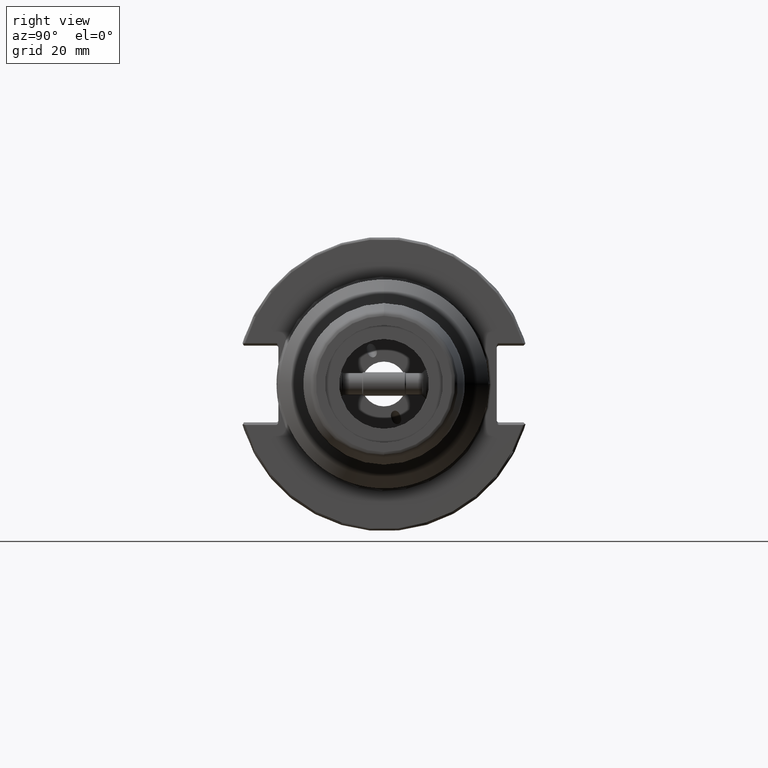
[diagram: clean part render]
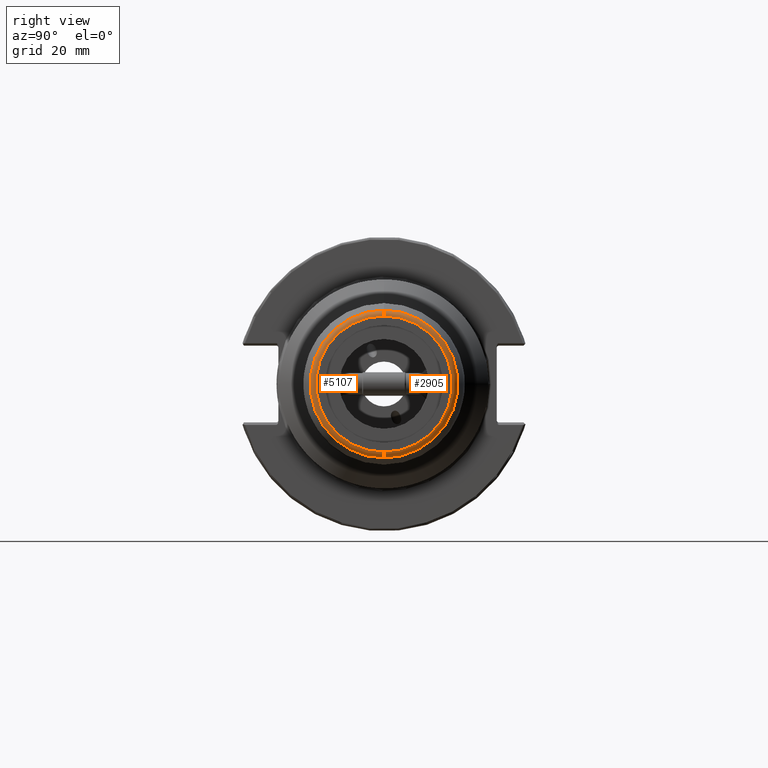
[diagram: same view with one multi-face feature highlighted, each face labeled with its STEP entity id]
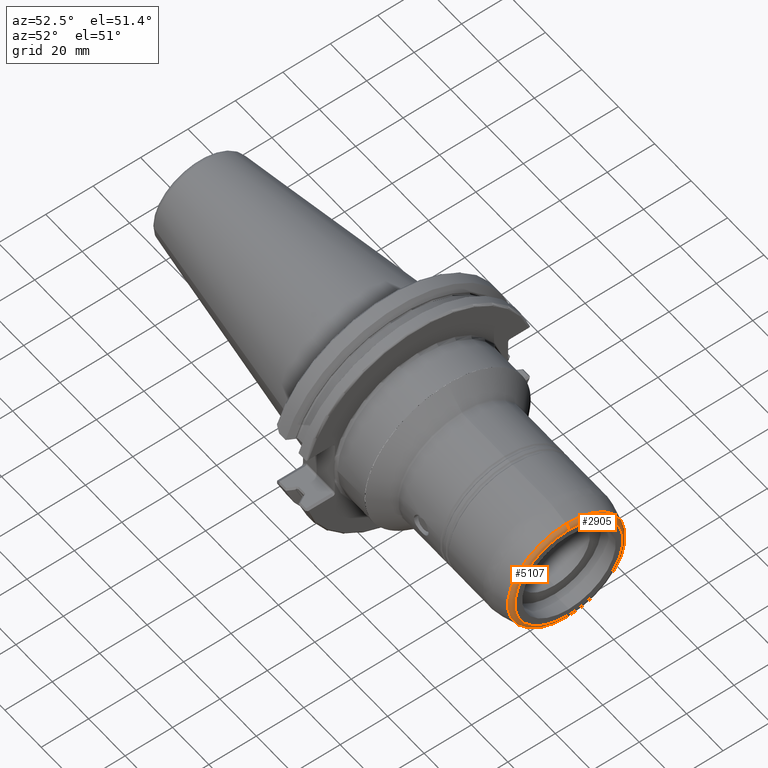
[diagram: same view with one multi-face feature highlighted, each face labeled with its STEP entity id]
A machine part, right view. The highlighted faces form ONE feature: a constant-radius fillet chain: 2 tangent blend faces with common blend radius 2 mm. The faces share edges in the B-rep.
A second angle (auxiliary view) of the same feature is appended — it is thin or edge-on in the first view.
Their STEP definitions:
[1] entity #5107 (Torus):
#357 = DIRECTION ( 'NONE',  ( -1.000000000000000000, -0.0000000000000000000, -0.0000000000000000000 ) ) ;
#432 = CARTESIAN_POINT ( 'NONE',  ( 99.41606872659400600, 0.0000000000000000000, 22.78585410437001000 ) ) ;
#460 = DIRECTION ( 'NONE',  ( -1.000000000000000000, -0.0000000000000000000, -0.0000000000000000000 ) ) ;
#894 = CARTESIAN_POINT ( 'NONE',  ( 101.4160687253223200, 2.908754126550275600E-015, -22.78585410437001000 ) ) ;
#989 = DIRECTION ( 'NONE',  ( 0.0000000000000000000, 0.0000000000000000000, -1.000000000000000000 ) ) ;
#1274 = AXIS2_PLACEMENT_3D ( 'NONE', #6542, #3836, #3084 ) ;
#1393 = ORIENTED_EDGE ( 'NONE', *, *, #6760, .T. ) ;
#1725 = EDGE_CURVE ( 'NONE', #2615, #5076, #6459, .T. ) ;
#2149 = CARTESIAN_POINT ( 'NONE',  ( 99.41606872659400600, 0.0000000000000000000, 0.0000000000000000000 ) ) ;
#2348 = EDGE_CURVE ( 'NONE', #3753, #5076, #6453, .T. ) ;
#2432 = AXIS2_PLACEMENT_3D ( 'NONE', #2149, #460, #6056 ) ;
#2487 = ORIENTED_EDGE ( 'NONE', *, *, #2348, .F. ) ;
#2551 = CARTESIAN_POINT ( 'NONE',  ( 99.41606872659400600, 2.790462329475531300E-015, -22.78585410437001000 ) ) ;
#2615 = VERTEX_POINT ( 'NONE', #7243 ) ;
#2661 = FACE_OUTER_BOUND ( 'NONE', #3598, .T. ) ;
#2850 = AXIS2_PLACEMENT_3D ( 'NONE', #3690, #357, #4245 ) ;
#2927 = ORIENTED_EDGE ( 'NONE', *, *, #5476, .F. ) ;
#3084 = DIRECTION ( 'NONE',  ( 0.0000000000000000000, 0.0000000000000000000, 1.000000000000000000 ) ) ;
#3121 = DIRECTION ( 'NONE',  ( 0.0000000000000000000, -1.224646799147353200E-016, 1.000000000000000000 ) ) ;
#3238 = CARTESIAN_POINT ( 'NONE',  ( 99.93370681573291800, 0.0000000000000000000, 24.71770575591725800 ) ) ;
#3530 = CIRCLE ( 'NONE', #4920, 1.999999998728314100 ) ;
#3598 = EDGE_LOOP ( 'NONE', ( #2927, #1393, #4277, #2487 ) ) ;
#3676 = VERTEX_POINT ( 'NONE', #894 ) ;
#3690 = CARTESIAN_POINT ( 'NONE',  ( 101.4160687253223200, 0.0000000000000000000, 0.0000000000000000000 ) ) ;
#3753 = VERTEX_POINT ( 'NONE', #7090 ) ;
#3795 = TOROIDAL_SURFACE ( 'NONE', #2432, 22.78585410437001000, 1.999999998728315000 ) ;
#3836 = DIRECTION ( 'NONE',  ( -1.000000000000000000, -0.0000000000000000000, -0.0000000000000000000 ) ) ;
#4245 = DIRECTION ( 'NONE',  ( 0.0000000000000000000, 0.0000000000000000000, 1.000000000000000000 ) ) ;
#4277 = ORIENTED_EDGE ( 'NONE', *, *, #1725, .T. ) ;
#4324 = DIRECTION ( 'NONE',  ( 0.0000000000000000000, -1.000000000000000000, 0.0000000000000000000 ) ) ;
#4920 = AXIS2_PLACEMENT_3D ( 'NONE', #2551, #6456, #3121 ) ;
#5076 = VERTEX_POINT ( 'NONE', #3238 ) ;
#5107 = ADVANCED_FACE ( 'NONE', ( #2661 ), #3795, .T. ) ;
#5476 = EDGE_CURVE ( 'NONE', #3676, #3753, #3530, .T. ) ;
#5817 = AXIS2_PLACEMENT_3D ( 'NONE', #432, #4324, #989 ) ;
#6056 = DIRECTION ( 'NONE',  ( 0.0000000000000000000, 0.0000000000000000000, 1.000000000000000000 ) ) ;
#6453 = CIRCLE ( 'NONE', #1274, 24.71770575591725800 ) ;
#6456 = DIRECTION ( 'NONE',  ( -0.0000000000000000000, 1.000000000000000000, 1.224646799147353200E-016 ) ) ;
#6459 = CIRCLE ( 'NONE', #5817, 1.999999998728314100 ) ;
#6519 = CIRCLE ( 'NONE', #2850, 22.78585410437001000 ) ;
#6542 = CARTESIAN_POINT ( 'NONE',  ( 99.93370681573291800, 0.0000000000000000000, 0.0000000000000000000 ) ) ;
#6760 = EDGE_CURVE ( 'NONE', #3676, #2615, #6519, .T. ) ;
#7090 = CARTESIAN_POINT ( 'NONE',  ( 99.93370681573291800, 3.135499519931746400E-015, -24.71770575591725800 ) ) ;
#7243 = CARTESIAN_POINT ( 'NONE',  ( 101.4160687253223200, 0.0000000000000000000, 22.78585410437001000 ) ) ;
[2] entity #2905 (Torus):
#206 = DIRECTION ( 'NONE',  ( 0.0000000000000000000, 0.0000000000000000000, 1.000000000000000000 ) ) ;
#223 = FACE_OUTER_BOUND ( 'NONE', #2214, .T. ) ;
#432 = CARTESIAN_POINT ( 'NONE',  ( 99.41606872659400600, 0.0000000000000000000, 22.78585410437001000 ) ) ;
#727 = DIRECTION ( 'NONE',  ( -1.000000000000000000, -0.0000000000000000000, -0.0000000000000000000 ) ) ;
#796 = DIRECTION ( 'NONE',  ( -1.000000000000000000, -0.0000000000000000000, -0.0000000000000000000 ) ) ;
#894 = CARTESIAN_POINT ( 'NONE',  ( 101.4160687253223200, 2.908754126550275600E-015, -22.78585410437001000 ) ) ;
#989 = DIRECTION ( 'NONE',  ( 0.0000000000000000000, 0.0000000000000000000, -1.000000000000000000 ) ) ;
#1540 = CARTESIAN_POINT ( 'NONE',  ( 99.93370681573291800, 0.0000000000000000000, 0.0000000000000000000 ) ) ;
#1725 = EDGE_CURVE ( 'NONE', #2615, #5076, #6459, .T. ) ;
#2091 = DIRECTION ( 'NONE',  ( 0.0000000000000000000, 0.0000000000000000000, 1.000000000000000000 ) ) ;
#2186 = ORIENTED_EDGE ( 'NONE', *, *, #1725, .F. ) ;
#2214 = EDGE_LOOP ( 'NONE', ( #2601, #3261, #2877, #2186 ) ) ;
#2410 = CARTESIAN_POINT ( 'NONE',  ( 99.41606872659400600, 0.0000000000000000000, 0.0000000000000000000 ) ) ;
#2499 = AXIS2_PLACEMENT_3D ( 'NONE', #2410, #727, #206 ) ;
#2551 = CARTESIAN_POINT ( 'NONE',  ( 99.41606872659400600, 2.790462329475531300E-015, -22.78585410437001000 ) ) ;
#2567 = AXIS2_PLACEMENT_3D ( 'NONE', #1540, #5413, #2091 ) ;
#2601 = ORIENTED_EDGE ( 'NONE', *, *, #5464, .T. ) ;
#2615 = VERTEX_POINT ( 'NONE', #7243 ) ;
#2877 = ORIENTED_EDGE ( 'NONE', *, *, #7241, .F. ) ;
#2905 = ADVANCED_FACE ( 'NONE', ( #223 ), #5980, .T. ) ;
#3121 = DIRECTION ( 'NONE',  ( 0.0000000000000000000, -1.224646799147353200E-016, 1.000000000000000000 ) ) ;
#3238 = CARTESIAN_POINT ( 'NONE',  ( 99.93370681573291800, 0.0000000000000000000, 24.71770575591725800 ) ) ;
#3261 = ORIENTED_EDGE ( 'NONE', *, *, #5476, .T. ) ;
#3530 = CIRCLE ( 'NONE', #4920, 1.999999998728314100 ) ;
#3676 = VERTEX_POINT ( 'NONE', #894 ) ;
#3753 = VERTEX_POINT ( 'NONE', #7090 ) ;
#4139 = CARTESIAN_POINT ( 'NONE',  ( 101.4160687253223200, 0.0000000000000000000, 0.0000000000000000000 ) ) ;
#4161 = AXIS2_PLACEMENT_3D ( 'NONE', #4139, #796, #4690 ) ;
#4324 = DIRECTION ( 'NONE',  ( 0.0000000000000000000, -1.000000000000000000, 0.0000000000000000000 ) ) ;
#4690 = DIRECTION ( 'NONE',  ( 0.0000000000000000000, 0.0000000000000000000, 1.000000000000000000 ) ) ;
#4920 = AXIS2_PLACEMENT_3D ( 'NONE', #2551, #6456, #3121 ) ;
#5076 = VERTEX_POINT ( 'NONE', #3238 ) ;
#5176 = CIRCLE ( 'NONE', #4161, 22.78585410437001000 ) ;
#5354 = CIRCLE ( 'NONE', #2567, 24.71770575591725800 ) ;
#5413 = DIRECTION ( 'NONE',  ( -1.000000000000000000, -0.0000000000000000000, -0.0000000000000000000 ) ) ;
#5464 = EDGE_CURVE ( 'NONE', #2615, #3676, #5176, .T. ) ;
#5476 = EDGE_CURVE ( 'NONE', #3676, #3753, #3530, .T. ) ;
#5817 = AXIS2_PLACEMENT_3D ( 'NONE', #432, #4324, #989 ) ;
#5980 = TOROIDAL_SURFACE ( 'NONE', #2499, 22.78585410437001000, 1.999999998728315000 ) ;
#6456 = DIRECTION ( 'NONE',  ( -0.0000000000000000000, 1.000000000000000000, 1.224646799147353200E-016 ) ) ;
#6459 = CIRCLE ( 'NONE', #5817, 1.999999998728314100 ) ;
#7090 = CARTESIAN_POINT ( 'NONE',  ( 99.93370681573291800, 3.135499519931746400E-015, -24.71770575591725800 ) ) ;
#7241 = EDGE_CURVE ( 'NONE', #5076, #3753, #5354, .T. ) ;
#7243 = CARTESIAN_POINT ( 'NONE',  ( 101.4160687253223200, 0.0000000000000000000, 22.78585410437001000 ) ) ;